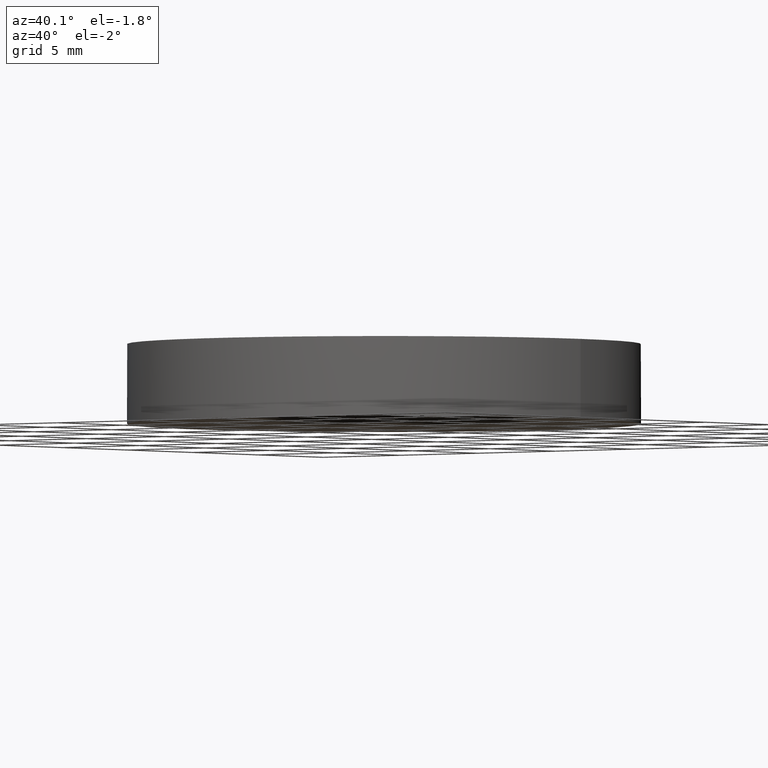
[diagram: clean part render]
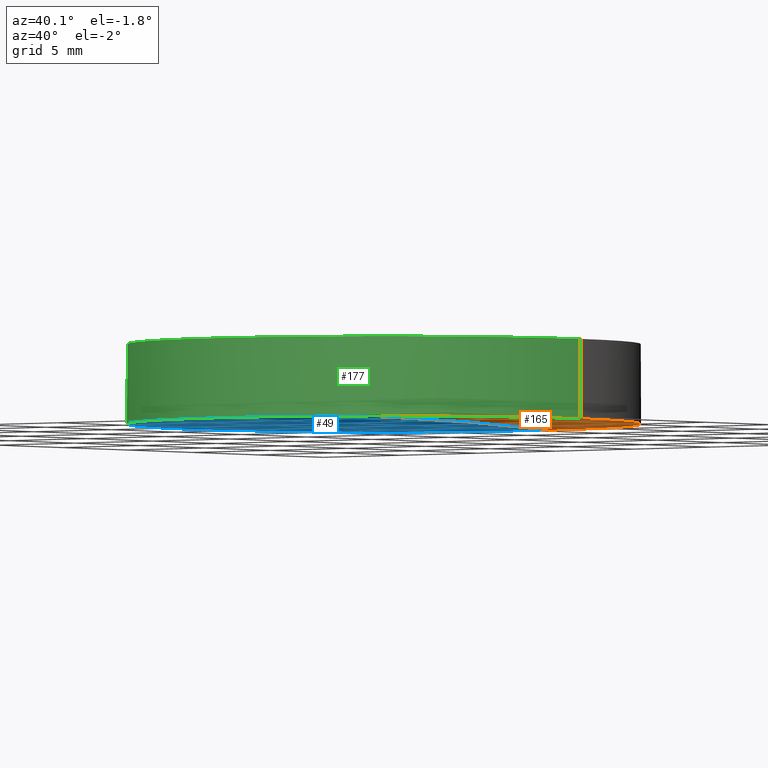
[diagram: same view with three faces highlighted in distinct colors, each labeled with its STEP entity id]
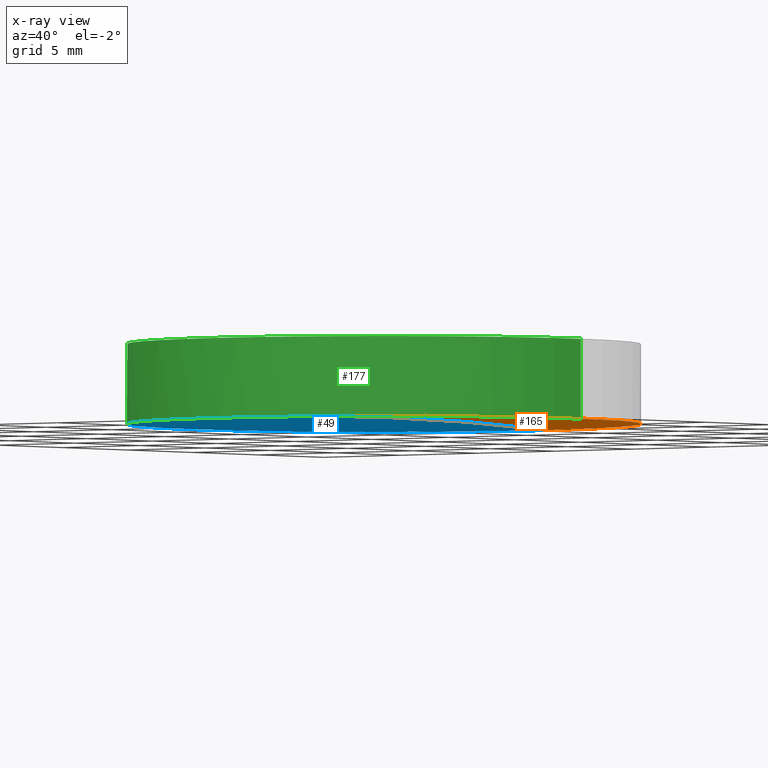
[diagram: x-ray of the same camera — body ghosted, the three highlighted faces saturated]
A machine part, auxiliary view with three faces highlighted in distinct colors.
The next image is the same camera in x-ray (body ghosted, the three faces saturated) — at least one of them is partly hidden behind the body in this view.
Their STEP definitions:

[orange] entity #165 — the highlighted face is a freeform B-spline surface patch.
#7 = CARTESIAN_POINT ( 'NONE',  ( 8.508214239662985200, -12.85224669324310500, -0.4706238805829514000 ) ) ;
#15 = CARTESIAN_POINT ( 'NONE',  ( -5.684341886080800200E-014, 12.85224669324306000, -0.3541252136480543800 ) ) ;
#18 = CARTESIAN_POINT ( 'NONE',  ( -5.684341886080800200E-014, 12.69999999999988600, -0.3457788410602451500 ) ) ;
#19 = EDGE_LOOP ( 'NONE', ( #158, #203, #197 ) ) ;
#21 = EDGE_CURVE ( 'NONE', #33, #37, #233, .T. ) ;
#29 = CARTESIAN_POINT ( 'NONE',  ( 4.263527609823305500, 4.288419956397405900, 0.1181612576788217100 ) ) ;
#33 = VERTEX_POINT ( 'NONE', #73 ) ;
#36 = AXIS2_PLACEMENT_3D ( 'NONE', #119, #157, #50 ) ;
#37 = VERTEX_POINT ( 'NONE', #18 ) ;
#43 = CARTESIAN_POINT ( 'NONE',  ( -5.684341886080800200E-014, -12.85224669324310300, -0.3541252136480543800 ) ) ;
#45 = CARTESIAN_POINT ( 'NONE',  ( 4.254904698442866000, 12.85224669324306200, -0.3541252136480544400 ) ) ;
#48 = CARTESIAN_POINT ( 'NONE',  ( 12.78259207824281600, 4.288419956397404100, -0.2319554979101992600 ) ) ;
#50 = DIRECTION ( 'NONE',  ( 0.0000000000000000000, 1.000000000000000000, -2.378369804252691300E-016 ) ) ;
#58 = CIRCLE ( 'NONE', #36, 233.4000000000000300 ) ;
#59 = CARTESIAN_POINT ( 'NONE',  ( 12.75673950525864500, -12.85224669324310300, -0.7035338641108660500 ) ) ;
#60 = CARTESIAN_POINT ( 'NONE',  ( 12.78259207824281600, -4.288419956397447700, -0.2319554979101987000 ) ) ;
#64 = EDGE_CURVE ( 'NONE', #88, #33, #83, .T. ) ;
#66 = CARTESIAN_POINT ( 'NONE',  ( 12.75673950525864500, 12.85224669324306000, -0.7035338641108660500 ) ) ;
#73 = CARTESIAN_POINT ( 'NONE',  ( 12.69999999999999900, 2.442490654175340100E-015, -0.3457788410602499800 ) ) ;
#81 =( BOUNDED_SURFACE ( )  B_SPLINE_SURFACE ( 3, 3, ( 
 ( #15, #45, #170, #66 ),
 ( #195, #29, #214, #48 ),
 ( #121, #118, #225, #60 ),
 ( #43, #187, #7, #59 ) ),
 .UNSPECIFIED., .F., .F., .F. ) 
 B_SPLINE_SURFACE_WITH_KNOTS ( ( 4, 4 ),
 ( 4, 4 ),
 ( 0.0000000000000000000, 1.000000000000000000 ),
 ( 0.0000000000000000000, 1.000000000000000000 ),
 .UNSPECIFIED. ) 
 GEOMETRIC_REPRESENTATION_ITEM ( )  RATIONAL_B_SPLINE_SURFACE ( (
 ( 1.000000000000000000, 0.9997500676927196800, 0.9997500676927196800, 1.000000000000000000),
 ( 0.9989885026745271000, 0.9987388231731071400, 0.9987388231731071400, 0.9989885026745271000),
 ( 0.9989885026745271000, 0.9987388231731071400, 0.9987388231731071400, 0.9989885026745271000),
 ( 1.000000000000000000, 0.9997500676927196800, 0.9997500676927196800, 1.000000000000000000) ) ) 
 REPRESENTATION_ITEM ( '' )  SURFACE ( )  );
#83 = CIRCLE ( 'NONE', #146, 12.69999999999999900 ) ;
#88 = VERTEX_POINT ( 'NONE', #160 ) ;
#94 = EDGE_CURVE ( 'NONE', #37, #88, #58, .T. ) ;
#103 = DIRECTION ( 'NONE',  ( 0.0000000000000000000, 0.0000000000000000000, 1.000000000000000000 ) ) ;
#115 = CARTESIAN_POINT ( 'NONE',  ( 4.996003610813200500E-016, 2.442490654175340100E-015, -0.3457788410602499800 ) ) ;
#118 = CARTESIAN_POINT ( 'NONE',  ( 4.263527609823305500, -4.288419956397449400, 0.1181612576788222500 ) ) ;
#119 = CARTESIAN_POINT ( 'NONE',  ( -5.684341886080800200E-014, -1.421085471520200100E-014, -233.4000000000000300 ) ) ;
#121 = CARTESIAN_POINT ( 'NONE',  ( -5.684341886080800200E-014, -4.288419956397447700, 0.1181612576788222500 ) ) ;
#125 = DIRECTION ( 'NONE',  ( 1.000000000000000000, 0.0000000000000000000, 0.0000000000000000000 ) ) ;
#133 = FACE_OUTER_BOUND ( 'NONE', #19, .T. ) ;
#146 = AXIS2_PLACEMENT_3D ( 'NONE', #115, #210, #168 ) ;
#157 = DIRECTION ( 'NONE',  ( 1.000000000000000000, 0.0000000000000000000, 0.0000000000000000000 ) ) ;
#158 = ORIENTED_EDGE ( 'NONE', *, *, #94, .F. ) ;
#160 = CARTESIAN_POINT ( 'NONE',  ( -5.684341886080800200E-014, -12.69999999999989600, -0.3457788410602451500 ) ) ;
#165 = ADVANCED_FACE ( 'NONE', ( #133 ), #81, .F. ) ;
#168 = DIRECTION ( 'NONE',  ( 1.000000000000000000, 0.0000000000000000000, 0.0000000000000000000 ) ) ;
#170 = CARTESIAN_POINT ( 'NONE',  ( 8.508214239662985200, 12.85224669324306200, -0.4706238805829514000 ) ) ;
#186 = AXIS2_PLACEMENT_3D ( 'NONE', #219, #103, #125 ) ;
#187 = CARTESIAN_POINT ( 'NONE',  ( 4.254904698442866000, -12.85224669324310500, -0.3541252136480544400 ) ) ;
#195 = CARTESIAN_POINT ( 'NONE',  ( -5.684341886080800200E-014, 4.288419956397404100, 0.1181612576788217100 ) ) ;
#197 = ORIENTED_EDGE ( 'NONE', *, *, #64, .F. ) ;
#203 = ORIENTED_EDGE ( 'NONE', *, *, #21, .F. ) ;
#210 = DIRECTION ( 'NONE',  ( 0.0000000000000000000, 0.0000000000000000000, 1.000000000000000000 ) ) ;
#214 = CARTESIAN_POINT ( 'NONE',  ( 8.525456829707655600, 4.288419956397405900, 0.001426496694324460300 ) ) ;
#219 = CARTESIAN_POINT ( 'NONE',  ( 4.996003610813200500E-016, 2.442490654175340100E-015, -0.3457788410602499800 ) ) ;
#225 = CARTESIAN_POINT ( 'NONE',  ( 8.525456829707655600, -4.288419956397449400, 0.001426496694325029100 ) ) ;
#233 = CIRCLE ( 'NONE', #186, 12.69999999999999900 ) ;

[blue] entity #49 — the highlighted face is a freeform B-spline surface patch.
#2 = CARTESIAN_POINT ( 'NONE',  ( -4.263527609823435100, 4.288419956397405900, 0.1181612576788153000 ) ) ;
#3 = ORIENTED_EDGE ( 'NONE', *, *, #94, .T. ) ;
#4 = CARTESIAN_POINT ( 'NONE',  ( -12.75673950525867900, -12.85224669324310300, -0.7035338641108723800 ) ) ;
#17 = AXIS2_PLACEMENT_3D ( 'NONE', #174, #154, #138 ) ;
#18 = CARTESIAN_POINT ( 'NONE',  ( -5.684341886080800200E-014, 12.69999999999988600, -0.3457788410602451500 ) ) ;
#23 = CARTESIAN_POINT ( 'NONE',  ( -1.179611963664228800E-013, 12.85224669324306000, -0.3541252136480597100 ) ) ;
#24 = CARTESIAN_POINT ( 'NONE',  ( -8.525456829707737300, -4.288419956397449400, 0.001426496694314620700 ) ) ;
#35 = CARTESIAN_POINT ( 'NONE',  ( -8.525456829707737300, 4.288419956397405900, 0.001426496694314024600 ) ) ;
#36 = AXIS2_PLACEMENT_3D ( 'NONE', #119, #157, #50 ) ;
#37 = VERTEX_POINT ( 'NONE', #18 ) ;
#49 = ADVANCED_FACE ( 'NONE', ( #217 ), #114, .F. ) ;
#50 = DIRECTION ( 'NONE',  ( 0.0000000000000000000, 1.000000000000000000, -2.378369804252691300E-016 ) ) ;
#53 = ORIENTED_EDGE ( 'NONE', *, *, #222, .F. ) ;
#58 = CIRCLE ( 'NONE', #36, 233.4000000000000300 ) ;
#70 = ORIENTED_EDGE ( 'NONE', *, *, #87, .F. ) ;
#74 = CARTESIAN_POINT ( 'NONE',  ( -4.263527609823435100, -4.288419956397449400, 0.1181612576788159000 ) ) ;
#75 = CARTESIAN_POINT ( 'NONE',  ( -1.179611963664229100E-013, -4.288419956397447700, 0.1181612576788170100 ) ) ;
#77 = CARTESIAN_POINT ( 'NONE',  ( 4.996003610813200500E-016, 2.442490654175340100E-015, -0.3457788410602499800 ) ) ;
#87 = EDGE_CURVE ( 'NONE', #185, #88, #155, .T. ) ;
#88 = VERTEX_POINT ( 'NONE', #160 ) ;
#91 = EDGE_LOOP ( 'NONE', ( #53, #3, #70 ) ) ;
#94 = EDGE_CURVE ( 'NONE', #37, #88, #58, .T. ) ;
#108 = CARTESIAN_POINT ( 'NONE',  ( -4.254904698442995700, -12.85224669324310500, -0.3541252136480608800 ) ) ;
#114 =( BOUNDED_SURFACE ( )  B_SPLINE_SURFACE ( 3, 3, ( 
 ( #127, #148, #204, #23 ),
 ( #130, #35, #2, #181 ),
 ( #202, #24, #74, #75 ),
 ( #4, #205, #108, #182 ) ),
 .UNSPECIFIED., .F., .F., .F. ) 
 B_SPLINE_SURFACE_WITH_KNOTS ( ( 4, 4 ),
 ( 4, 4 ),
 ( 0.0000000000000000000, 1.000000000000000000 ),
 ( 0.0000000000000000000, 1.000000000000000000 ),
 .UNSPECIFIED. ) 
 GEOMETRIC_REPRESENTATION_ITEM ( )  RATIONAL_B_SPLINE_SURFACE ( (
 ( 1.000000000000000000, 0.9997500676927196800, 0.9997500676927196800, 1.000000000000000000),
 ( 0.9989885026745271000, 0.9987388231731071400, 0.9987388231731071400, 0.9989885026745271000),
 ( 0.9989885026745271000, 0.9987388231731071400, 0.9987388231731071400, 0.9989885026745271000),
 ( 1.000000000000000000, 0.9997500676927196800, 0.9997500676927196800, 1.000000000000000000) ) ) 
 REPRESENTATION_ITEM ( '' )  SURFACE ( )  );
#119 = CARTESIAN_POINT ( 'NONE',  ( -5.684341886080800200E-014, -1.421085471520200100E-014, -233.4000000000000300 ) ) ;
#126 = CIRCLE ( 'NONE', #206, 12.69999999999999900 ) ;
#127 = CARTESIAN_POINT ( 'NONE',  ( -12.75673950525867900, 12.85224669324306000, -0.7035338641108723800 ) ) ;
#130 = CARTESIAN_POINT ( 'NONE',  ( -12.78259207824285000, 4.288419956397404100, -0.2319554979102056700 ) ) ;
#138 = DIRECTION ( 'NONE',  ( 1.000000000000000000, 0.0000000000000000000, 0.0000000000000000000 ) ) ;
#148 = CARTESIAN_POINT ( 'NONE',  ( -8.508214239663063300, 12.85224669324306200, -0.4706238805829616700 ) ) ;
#154 = DIRECTION ( 'NONE',  ( 0.0000000000000000000, 0.0000000000000000000, 1.000000000000000000 ) ) ;
#155 = CIRCLE ( 'NONE', #17, 12.69999999999999900 ) ;
#157 = DIRECTION ( 'NONE',  ( 1.000000000000000000, 0.0000000000000000000, 0.0000000000000000000 ) ) ;
#160 = CARTESIAN_POINT ( 'NONE',  ( -5.684341886080800200E-014, -12.69999999999989600, -0.3457788410602451500 ) ) ;
#174 = CARTESIAN_POINT ( 'NONE',  ( 4.996003610813200500E-016, 2.442490654175340100E-015, -0.3457788410602499800 ) ) ;
#181 = CARTESIAN_POINT ( 'NONE',  ( -1.179611963664229100E-013, 4.288419956397404100, 0.1181612576788164100 ) ) ;
#182 = CARTESIAN_POINT ( 'NONE',  ( -1.179611963664228800E-013, -12.85224669324310300, -0.3541252136480597100 ) ) ;
#185 = VERTEX_POINT ( 'NONE', #189 ) ;
#189 = CARTESIAN_POINT ( 'NONE',  ( -12.69999999999999900, 3.997792089092478900E-015, -0.3457788410602499800 ) ) ;
#202 = CARTESIAN_POINT ( 'NONE',  ( -12.78259207824285000, -4.288419956397447700, -0.2319554979102050600 ) ) ;
#204 = CARTESIAN_POINT ( 'NONE',  ( -4.254904698442995700, 12.85224669324306200, -0.3541252136480608800 ) ) ;
#205 = CARTESIAN_POINT ( 'NONE',  ( -8.508214239663063300, -12.85224669324310500, -0.4706238805829616700 ) ) ;
#206 = AXIS2_PLACEMENT_3D ( 'NONE', #77, #207, #224 ) ;
#207 = DIRECTION ( 'NONE',  ( 0.0000000000000000000, 0.0000000000000000000, 1.000000000000000000 ) ) ;
#217 = FACE_OUTER_BOUND ( 'NONE', #91, .T. ) ;
#222 = EDGE_CURVE ( 'NONE', #37, #185, #126, .T. ) ;
#224 = DIRECTION ( 'NONE',  ( 1.000000000000000000, 0.0000000000000000000, 0.0000000000000000000 ) ) ;

[green] entity #177 — the highlighted cylindrical surface (partial cylindrical patch) has radius 12.7 mm, axis along (0, 0, 1).
#8 = DIRECTION ( 'NONE',  ( 0.0000000000000000000, 0.0000000000000000000, 1.000000000000000000 ) ) ;
#9 = CIRCLE ( 'NONE', #68, 12.69999999999999900 ) ;
#13 = FACE_OUTER_BOUND ( 'NONE', #62, .T. ) ;
#16 = ORIENTED_EDGE ( 'NONE', *, *, #64, .T. ) ;
#17 = AXIS2_PLACEMENT_3D ( 'NONE', #174, #154, #138 ) ;
#27 = EDGE_CURVE ( 'NONE', #33, #198, #101, .T. ) ;
#32 = CARTESIAN_POINT ( 'NONE',  ( 12.69999999999999900, 2.442490654175340100E-015, -0.3457788410602499800 ) ) ;
#33 = VERTEX_POINT ( 'NONE', #73 ) ;
#51 = ORIENTED_EDGE ( 'NONE', *, *, #87, .T. ) ;
#61 = CARTESIAN_POINT ( 'NONE',  ( 12.69999999999999900, 2.442490654175340100E-015, 3.600000000000001000 ) ) ;
#62 = EDGE_LOOP ( 'NONE', ( #163, #51, #16, #106, #193 ) ) ;
#64 = EDGE_CURVE ( 'NONE', #88, #33, #83, .T. ) ;
#68 = AXIS2_PLACEMENT_3D ( 'NONE', #215, #98, #141 ) ;
#71 = CYLINDRICAL_SURFACE ( 'NONE', #190, 12.69999999999999900 ) ;
#73 = CARTESIAN_POINT ( 'NONE',  ( 12.69999999999999900, 2.442490654175340100E-015, -0.3457788410602499800 ) ) ;
#82 = EDGE_CURVE ( 'NONE', #198, #128, #9, .T. ) ;
#83 = CIRCLE ( 'NONE', #146, 12.69999999999999900 ) ;
#87 = EDGE_CURVE ( 'NONE', #185, #88, #155, .T. ) ;
#88 = VERTEX_POINT ( 'NONE', #160 ) ;
#92 = CARTESIAN_POINT ( 'NONE',  ( -12.69999999999999900, 3.997792089092478900E-015, -0.3457788410602499800 ) ) ;
#98 = DIRECTION ( 'NONE',  ( -0.0000000000000000000, -0.0000000000000000000, -1.000000000000000000 ) ) ;
#101 = LINE ( 'NONE', #32, #183 ) ;
#106 = ORIENTED_EDGE ( 'NONE', *, *, #27, .T. ) ;
#112 = CARTESIAN_POINT ( 'NONE',  ( 4.996003610813200500E-016, 2.442490654175340100E-015, -0.3457788410602499800 ) ) ;
#115 = CARTESIAN_POINT ( 'NONE',  ( 4.996003610813200500E-016, 2.442490654175340100E-015, -0.3457788410602499800 ) ) ;
#116 = DIRECTION ( 'NONE',  ( 0.0000000000000000000, 0.0000000000000000000, 1.000000000000000000 ) ) ;
#128 = VERTEX_POINT ( 'NONE', #176 ) ;
#138 = DIRECTION ( 'NONE',  ( 1.000000000000000000, 0.0000000000000000000, 0.0000000000000000000 ) ) ;
#140 = LINE ( 'NONE', #92, #151 ) ;
#141 = DIRECTION ( 'NONE',  ( 1.000000000000000000, 0.0000000000000000000, 0.0000000000000000000 ) ) ;
#146 = AXIS2_PLACEMENT_3D ( 'NONE', #115, #210, #168 ) ;
#151 = VECTOR ( 'NONE', #116, 1000.000000000000000 ) ;
#154 = DIRECTION ( 'NONE',  ( 0.0000000000000000000, 0.0000000000000000000, 1.000000000000000000 ) ) ;
#155 = CIRCLE ( 'NONE', #17, 12.69999999999999900 ) ;
#160 = CARTESIAN_POINT ( 'NONE',  ( -5.684341886080800200E-014, -12.69999999999989600, -0.3457788410602451500 ) ) ;
#163 = ORIENTED_EDGE ( 'NONE', *, *, #178, .F. ) ;
#166 = DIRECTION ( 'NONE',  ( 1.000000000000000000, 0.0000000000000000000, 0.0000000000000000000 ) ) ;
#168 = DIRECTION ( 'NONE',  ( 1.000000000000000000, 0.0000000000000000000, 0.0000000000000000000 ) ) ;
#174 = CARTESIAN_POINT ( 'NONE',  ( 4.996003610813200500E-016, 2.442490654175340100E-015, -0.3457788410602499800 ) ) ;
#176 = CARTESIAN_POINT ( 'NONE',  ( -12.69999999999999900, 3.997792089092478900E-015, 3.600000000000001000 ) ) ;
#177 = ADVANCED_FACE ( 'NONE', ( #13 ), #71, .T. ) ;
#178 = EDGE_CURVE ( 'NONE', #185, #128, #140, .T. ) ;
#183 = VECTOR ( 'NONE', #235, 1000.000000000000000 ) ;
#185 = VERTEX_POINT ( 'NONE', #189 ) ;
#189 = CARTESIAN_POINT ( 'NONE',  ( -12.69999999999999900, 3.997792089092478900E-015, -0.3457788410602499800 ) ) ;
#190 = AXIS2_PLACEMENT_3D ( 'NONE', #112, #8, #166 ) ;
#193 = ORIENTED_EDGE ( 'NONE', *, *, #82, .T. ) ;
#198 = VERTEX_POINT ( 'NONE', #61 ) ;
#210 = DIRECTION ( 'NONE',  ( 0.0000000000000000000, 0.0000000000000000000, 1.000000000000000000 ) ) ;
#215 = CARTESIAN_POINT ( 'NONE',  ( 4.996003610813200500E-016, 2.442490654175340100E-015, 3.600000000000001000 ) ) ;
#235 = DIRECTION ( 'NONE',  ( 0.0000000000000000000, 0.0000000000000000000, 1.000000000000000000 ) ) ;